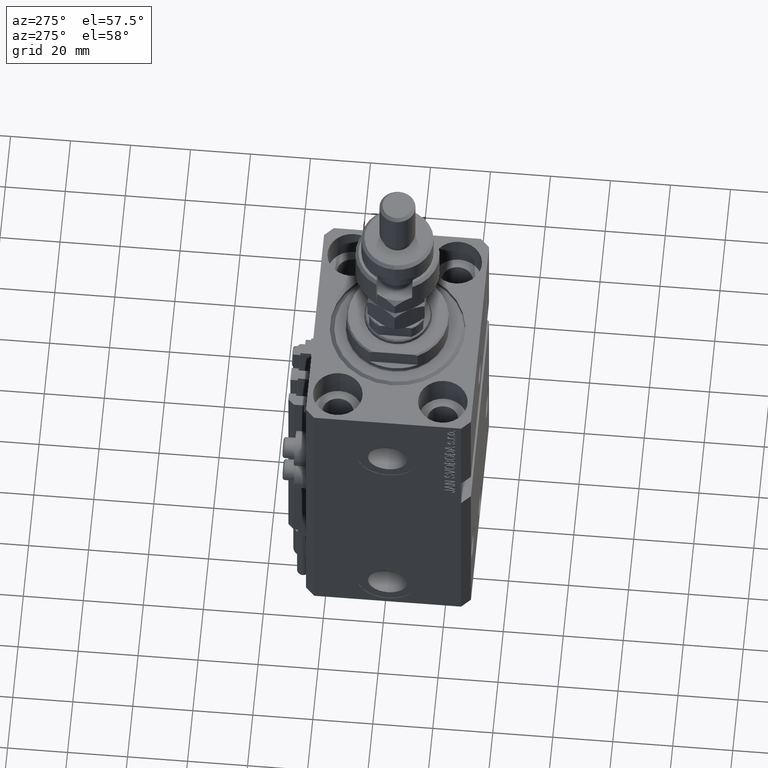
[diagram: clean part render]
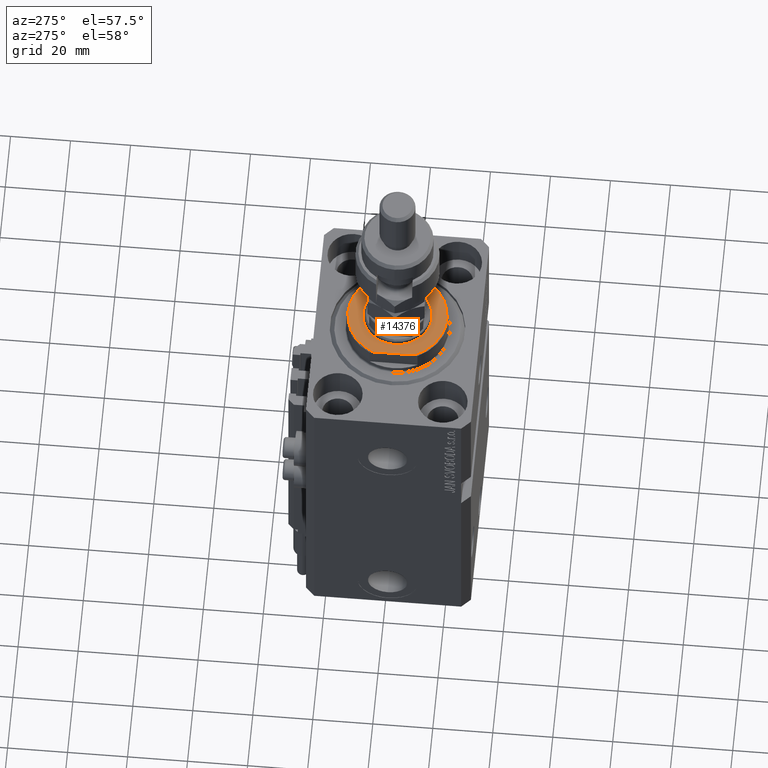
[diagram: same view with one face highlighted and labeled with its STEP entity id]
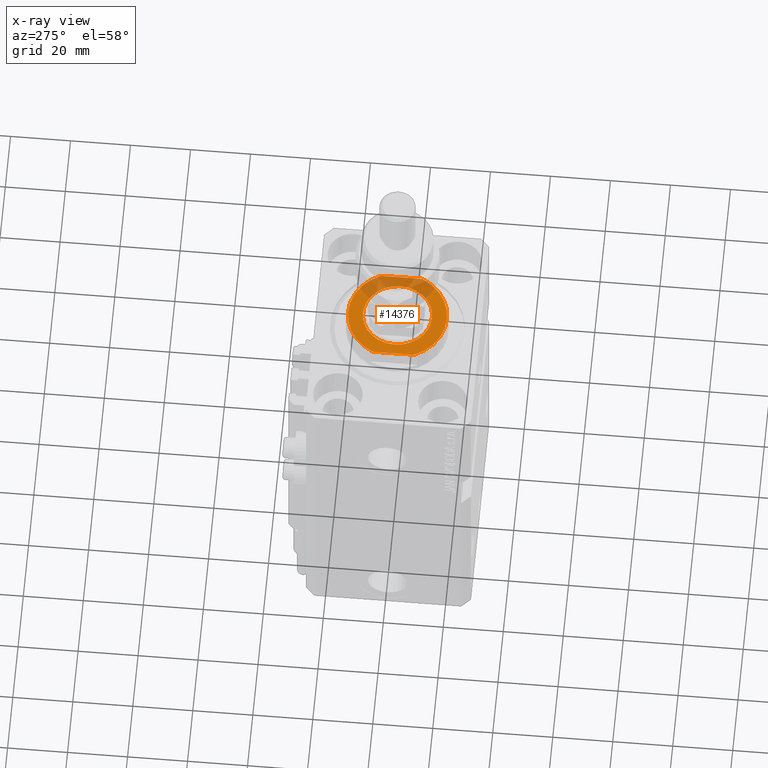
[diagram: x-ray of the same camera — body ghosted, the highlighted face saturated]
A machine part, auxiliary view. The second image highlights one B-rep face of the part: STEP entity #14376.
The next image is the same camera in x-ray: the body ghosted, the highlighted face saturated — about 27% of this face is hidden behind the body in this view.
In plain terms, the highlighted planar face has unit normal (0, 0, 1).
Its self-contained STEP definition (entity closure, byte-faithful):
#75 = CARTESIAN_POINT ( 'NONE',  ( 0.000000000000000000, 0.000000000000000000, -8.000000000000000000 ) ) ;
#1027 = DIRECTION ( 'NONE',  ( -1.000000000000000000, 0.000000000000000000, 0.000000000000000000 ) ) ;
#5035 = VERTEX_POINT ( 'NONE', #25457 ) ;
#5083 = ORIENTED_EDGE ( 'NONE', *, *, #23787, .T. ) ;
#6766 = CIRCLE ( 'NONE', #13376, 11.50000000000000355 ) ;
#6844 = CARTESIAN_POINT ( 'NONE',  ( 15.00000000000000000, -42.42640687119285303, -8.000000000000000000 ) ) ;
#6957 = DIRECTION ( 'NONE',  ( 0.000000000000000000, 0.000000000000000000, -1.000000000000000000 ) ) ;
#6989 = EDGE_LOOP ( 'NONE', ( #44512, #14503 ) ) ;
#7124 = VERTEX_POINT ( 'NONE', #48921 ) ;
#7449 = AXIS2_PLACEMENT_3D ( 'NONE', #20619, #29150, #1027 ) ;
#8368 = AXIS2_PLACEMENT_3D ( 'NONE', #34844, #6957, #46932 ) ;
#9402 = DIRECTION ( 'NONE',  ( -1.000000000000000000, 0.000000000000000000, -0.000000000000000000 ) ) ;
#10108 = CIRCLE ( 'NONE', #32359, 16.50000000000000000 ) ;
#12418 = DIRECTION ( 'NONE',  ( 0.000000000000000000, 0.000000000000000000, -1.000000000000000000 ) ) ;
#13376 = AXIS2_PLACEMENT_3D ( 'NONE', #37776, #30309, #14053 ) ;
#14053 = DIRECTION ( 'NONE',  ( -1.000000000000000000, 0.000000000000000000, 0.000000000000000000 ) ) ;
#14376 = ADVANCED_FACE ( 'NONE', ( #35977, #40093 ), #28748, .T. ) ;
#14503 = ORIENTED_EDGE ( 'NONE', *, *, #46350, .T. ) ;
#16204 = CARTESIAN_POINT ( 'NONE',  ( -11.50000000000000355, 0.000000000000000000, -8.000000000000000000 ) ) ;
#16325 = EDGE_CURVE ( 'NONE', #35216, #5035, #17353, .T. ) ;
#16363 = DIRECTION ( 'NONE',  ( 0.000000000000000000, 0.000000000000000000, -1.000000000000000000 ) ) ;
#17353 = CIRCLE ( 'NONE', #7449, 11.50000000000000355 ) ;
#18271 = EDGE_CURVE ( 'NONE', #27884, #47670, #22385, .T. ) ;
#20619 = CARTESIAN_POINT ( 'NONE',  ( 0.000000000000000000, 0.000000000000000000, -8.000000000000000000 ) ) ;
#21495 = CARTESIAN_POINT ( 'NONE',  ( -14.99999999999999645, 6.873863542433765517, -8.000000000000000000 ) ) ;
#22385 = LINE ( 'NONE', #34284, #44481 ) ;
#23018 = ORIENTED_EDGE ( 'NONE', *, *, #18271, .F. ) ;
#23787 = EDGE_CURVE ( 'NONE', #7124, #34378, #46314, .T. ) ;
#25457 = CARTESIAN_POINT ( 'NONE',  ( 11.50000000000000355, 1.408343819019456570E-15, -8.000000000000000000 ) ) ;
#25504 = DIRECTION ( 'NONE',  ( -0.000000000000000000, -1.000000000000000000, -0.000000000000000000 ) ) ;
#26252 = EDGE_CURVE ( 'NONE', #34378, #47670, #28155, .T. ) ;
#27410 = DIRECTION ( 'NONE',  ( -1.000000000000000000, 0.000000000000000000, 0.000000000000000000 ) ) ;
#27884 = VERTEX_POINT ( 'NONE', #21495 ) ;
#28095 = EDGE_CURVE ( 'NONE', #27884, #7124, #10108, .T. ) ;
#28155 = CIRCLE ( 'NONE', #8368, 16.50000000000000000 ) ;
#28748 = PLANE ( 'NONE',  #50234 ) ;
#29150 = DIRECTION ( 'NONE',  ( -0.000000000000000000, -0.000000000000000000, 1.000000000000000000 ) ) ;
#30309 = DIRECTION ( 'NONE',  ( -0.000000000000000000, -0.000000000000000000, 1.000000000000000000 ) ) ;
#30999 = ORIENTED_EDGE ( 'NONE', *, *, #26252, .T. ) ;
#32359 = AXIS2_PLACEMENT_3D ( 'NONE', #75, #12418, #27410 ) ;
#34252 = EDGE_LOOP ( 'NONE', ( #41354, #5083, #30999, #23018 ) ) ;
#34284 = CARTESIAN_POINT ( 'NONE',  ( -15.00000000000000000, -42.42640687119285303, -8.000000000000000000 ) ) ;
#34378 = VERTEX_POINT ( 'NONE', #44261 ) ;
#34844 = CARTESIAN_POINT ( 'NONE',  ( 0.000000000000000000, 0.000000000000000000, -8.000000000000000000 ) ) ;
#35216 = VERTEX_POINT ( 'NONE', #16204 ) ;
#35977 = FACE_BOUND ( 'NONE', #6989, .T. ) ;
#37776 = CARTESIAN_POINT ( 'NONE',  ( 0.000000000000000000, 0.000000000000000000, -8.000000000000000000 ) ) ;
#38583 = DIRECTION ( 'NONE',  ( 0.000000000000000000, -1.000000000000000000, -0.000000000000000000 ) ) ;
#39997 = CARTESIAN_POINT ( 'NONE',  ( -14.99999999999999645, -6.873863542433765517, -8.000000000000000000 ) ) ;
#40093 = FACE_OUTER_BOUND ( 'NONE', #34252, .T. ) ;
#40604 = CARTESIAN_POINT ( 'NONE',  ( 0.000000000000000000, 0.000000000000000000, -8.000000000000000000 ) ) ;
#41354 = ORIENTED_EDGE ( 'NONE', *, *, #28095, .T. ) ;
#44261 = CARTESIAN_POINT ( 'NONE',  ( 14.99999999999999645, -6.873863542433765517, -8.000000000000000000 ) ) ;
#44481 = VECTOR ( 'NONE', #25504, 1000.000000000000000 ) ;
#44512 = ORIENTED_EDGE ( 'NONE', *, *, #16325, .T. ) ;
#44551 = VECTOR ( 'NONE', #38583, 1000.000000000000000 ) ;
#46314 = LINE ( 'NONE', #6844, #44551 ) ;
#46350 = EDGE_CURVE ( 'NONE', #5035, #35216, #6766, .T. ) ;
#46932 = DIRECTION ( 'NONE',  ( -1.000000000000000000, 0.000000000000000000, 0.000000000000000000 ) ) ;
#47670 = VERTEX_POINT ( 'NONE', #39997 ) ;
#48921 = CARTESIAN_POINT ( 'NONE',  ( 14.99999999999999645, 6.873863542433765517, -8.000000000000000000 ) ) ;
#50234 = AXIS2_PLACEMENT_3D ( 'NONE', #40604, #16363, #9402 ) ;